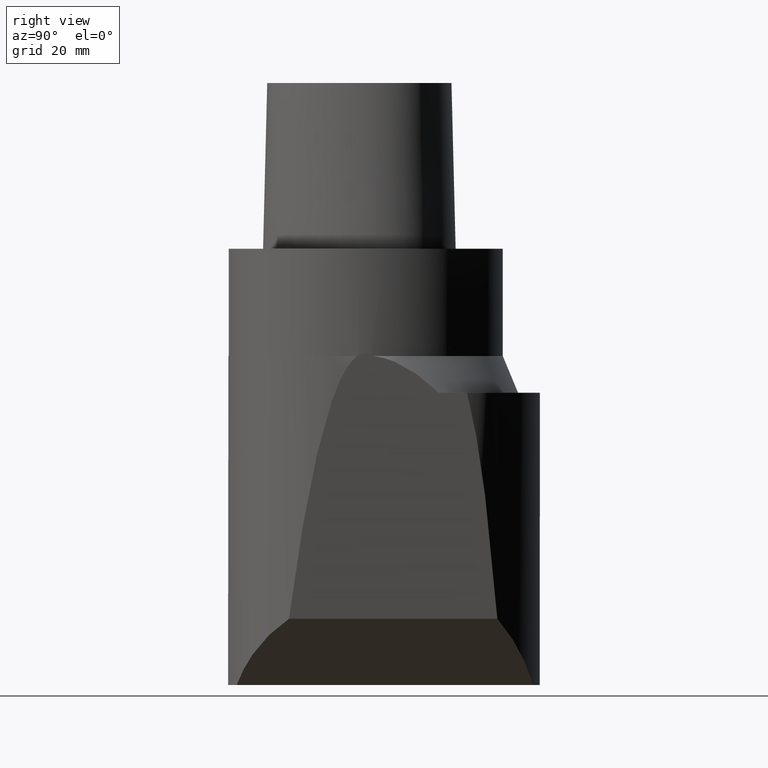
[diagram: clean part render]
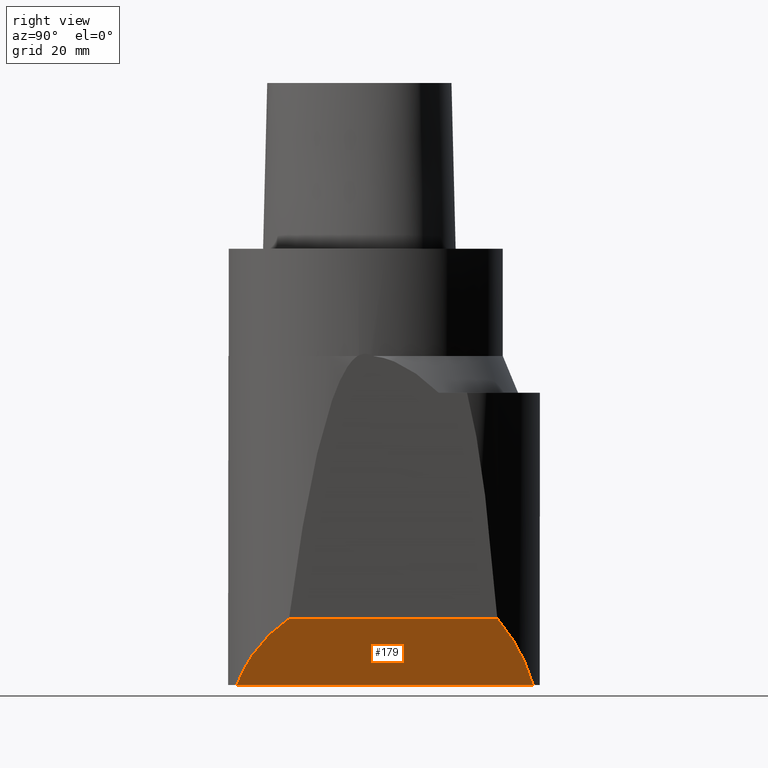
[diagram: same view with one face highlighted and labeled with its STEP entity id]
A machine part, right view. The second image highlights one B-rep face of the part: STEP entity #179.
In plain terms, the highlighted planar face has unit normal (0.7071, -0, -0.7071).
Its self-contained STEP definition (entity closure, byte-faithful):
#103=EDGE_CURVE('240[2]',#280,#281,#282,.T.);
#149=EDGE_CURVE('240[2]',#353,#354,#355,.F.);
#161=EDGE_CURVE('240[2]',#280,#354,#369,.F.);
#168=EDGE_CURVE('240[2]',#378,#281,#379,.F.);
#179=ADVANCED_FACE('240[2]',(#393),#394,.T.);
#199=EDGE_CURVE('240[2]',#378,#353,#417,.T.);
#280=VERTEX_POINT('',#501);
#281=VERTEX_POINT('',#502);
#282=ELLIPSE('',#503,44.5477272147523,31.5000000000001);
#353=VERTEX_POINT('',#697);
#354=VERTEX_POINT('',#698);
#355=ELLIPSE('',#699,22.6274169979689,15.9999999999997);
#369=LINE('',#722,#723);
#378=VERTEX_POINT('',#744);
#379=LINE('',#745,#746);
#393=FACE_OUTER_BOUND('',#831,.T.);
#394=PLANE('',#832);
#417=ELLIPSE('',#903,56.5685424949234,40.0);
#501=CARTESIAN_POINT('',(26.175122523835,-17.5246386799338,-84.824877124049));
#502=CARTESIAN_POINT('',(10.9999998252791,-29.5169443514038,-99.9999998226051));
#503=AXIS2_PLACEMENT_3D('',#1069,#1070,#1071);
#697=CARTESIAN_POINT('',(25.833333333333,30.5391370030147,-85.1666663145511));
#698=CARTESIAN_POINT('',(26.1751225238349,30.2416095337812,-84.8248771240493));
#699=AXIS2_PLACEMENT_3D('',#1126,#1127,#1128);
#722=CARTESIAN_POINT('',(26.1751225238349,-119.0,-84.8248771240492));
#723=VECTOR('',#1138,1.0);
#744=CARTESIAN_POINT('',(10.9999998252788,38.457769096034,-99.9999998226051));
#745=CARTESIAN_POINT('',(10.9999998252788,-49.5,-99.9999998226051));
#746=VECTOR('',#1146,1.0);
#831=EDGE_LOOP('',(#1164,#1165,#1166,#1167,#1168));
#832=AXIS2_PLACEMENT_3D('',#1169,#1170,#1171);
#903=AXIS2_PLACEMENT_3D('',#1198,#1199,#1200);
#1069=CARTESIAN_POINT('',(6.79678971370691E-015,0.0,-110.999999647884));
#1070=DIRECTION('',(0.707106781186542,-1.40316553605932E-030,-0.707106781186553));
#1071=DIRECTION('',(-0.707106781186553,-2.59786816870649E-016,-0.707106781186542));
#1126=CARTESIAN_POINT('',(15.5,18.323482201809,-95.499999647884));
#1127=DIRECTION('',(-0.707106781186542,1.237638486879E-030,0.707106781186553));
#1128=DIRECTION('',(-0.707106781186553,-2.59786816870649E-016,-0.707106781186542));
#1138=DIRECTION('',(1.22464679914735E-016,-1.0,1.22464679914735E-016));
#1146=DIRECTION('',(-1.22464679914735E-016,1.0,-1.22464679914735E-016));
#1164=ORIENTED_EDGE('',*,*,#199,.T.);
#1165=ORIENTED_EDGE('',*,*,#149,.T.);
#1166=ORIENTED_EDGE('',*,*,#161,.F.);
#1167=ORIENTED_EDGE('',*,*,#103,.T.);
#1168=ORIENTED_EDGE('',*,*,#168,.F.);
#1169=CARTESIAN_POINT('',(18.2149392136951,-119.0,-92.7850604341889));
#1170=DIRECTION('',(0.707106781186543,-1.22026921276375E-030,-0.707106781186553));
#1171=DIRECTION('',(-1.72572127043685E-030,-1.0,0.0));
#1198=CARTESIAN_POINT('',(6.79678971370691E-015,-2.8421709430404E-014,-110.999999647884));
#1199=DIRECTION('',(0.707106781186543,-1.32758517127748E-030,-0.707106781186552));
#1200=DIRECTION('',(0.707106781186552,1.73191211247099E-016,0.707106781186543));